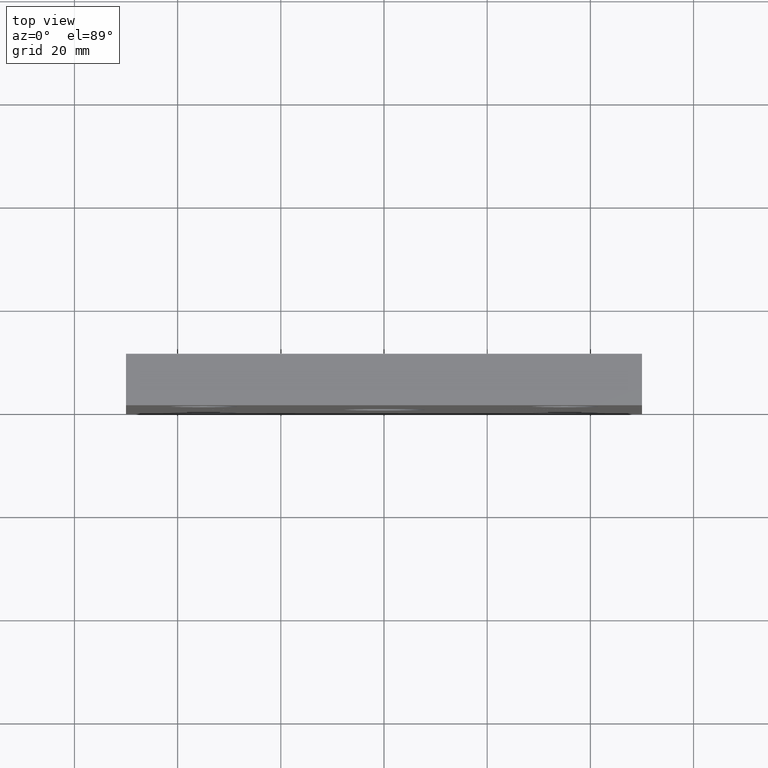
[diagram: clean part render]
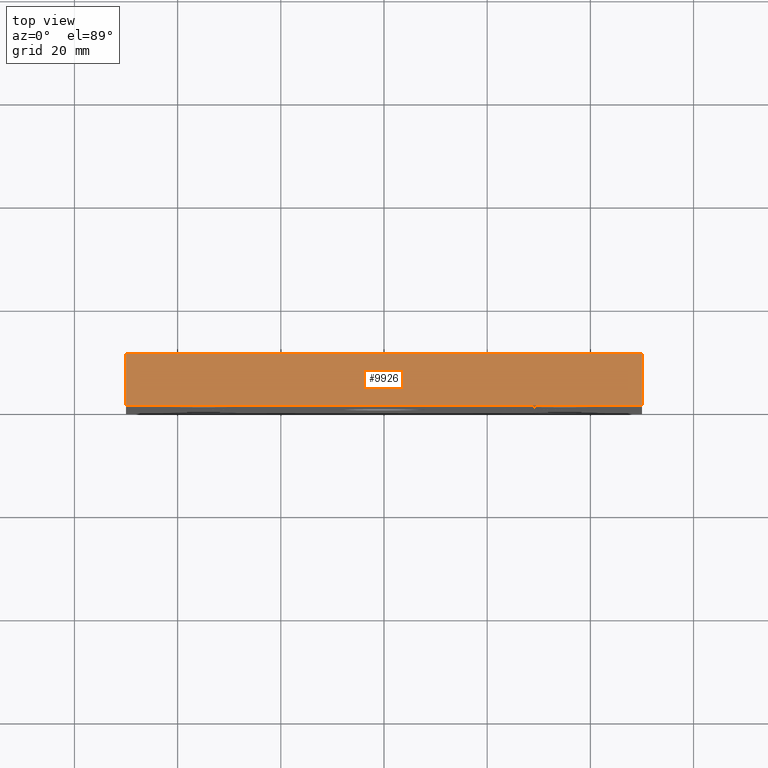
[diagram: same view with one face highlighted and labeled with its STEP entity id]
A machine part, top view. The second image highlights one B-rep face of the part: STEP entity #9926.
In plain terms, the highlighted planar face has unit normal (0, 0, -1).
Its self-contained STEP definition (entity closure, byte-faithful):
#145 = VERTEX_POINT ( 'NONE', #10033 ) ;
#1329 = EDGE_CURVE ( 'NONE', #13005, #4646, #11729, .T. ) ;
#1457 = CARTESIAN_POINT ( 'NONE',  ( -49.99999999999999289, 10.00000000000000000, 49.99999999999999289 ) ) ;
#1801 = CARTESIAN_POINT ( 'NONE',  ( -49.99999999999999289, 10.00000000000000000, 49.99999999999999289 ) ) ;
#1971 = AXIS2_PLACEMENT_3D ( 'NONE', #1457, #3553, #6878 ) ;
#3426 = VECTOR ( 'NONE', #13999, 1000.000000000000000 ) ;
#3553 = DIRECTION ( 'NONE',  ( 0.000000000000000000, 0.000000000000000000, -1.000000000000000000 ) ) ;
#4012 = EDGE_CURVE ( 'NONE', #12168, #13005, #9835, .T. ) ;
#4247 = ORIENTED_EDGE ( 'NONE', *, *, #11372, .T. ) ;
#4311 = DIRECTION ( 'NONE',  ( -0.000000000000000000, -1.000000000000000000, -0.000000000000000000 ) ) ;
#4615 = EDGE_CURVE ( 'NONE', #12168, #145, #6811, .T. ) ;
#4646 = VERTEX_POINT ( 'NONE', #11408 ) ;
#4960 = ORIENTED_EDGE ( 'NONE', *, *, #4615, .T. ) ;
#6811 = LINE ( 'NONE', #1801, #7309 ) ;
#6878 = DIRECTION ( 'NONE',  ( -1.000000000000000000, 0.000000000000000000, -0.000000000000000000 ) ) ;
#7138 = CARTESIAN_POINT ( 'NONE',  ( 50.00000000000000000, 10.00000000000000000, 49.99999999999999289 ) ) ;
#7309 = VECTOR ( 'NONE', #4311, 1000.000000000000000 ) ;
#7739 = ORIENTED_EDGE ( 'NONE', *, *, #4012, .F. ) ;
#7981 = DIRECTION ( 'NONE',  ( 1.000000000000000000, 0.000000000000000000, 0.000000000000000000 ) ) ;
#8184 = LINE ( 'NONE', #9118, #12888 ) ;
#8223 = ORIENTED_EDGE ( 'NONE', *, *, #1329, .F. ) ;
#9118 = CARTESIAN_POINT ( 'NONE',  ( -49.99999999999999289, 0.000000000000000000, 49.99999999999999289 ) ) ;
#9835 = LINE ( 'NONE', #12902, #3426 ) ;
#9926 = ADVANCED_FACE ( 'NONE', ( #13615 ), #10015, .F. ) ;
#10015 = PLANE ( 'NONE',  #1971 ) ;
#10033 = CARTESIAN_POINT ( 'NONE',  ( -49.99999999999999289, 0.000000000000000000, 49.99999999999999289 ) ) ;
#10207 = VECTOR ( 'NONE', #12550, 1000.000000000000000 ) ;
#11372 = EDGE_CURVE ( 'NONE', #145, #4646, #8184, .T. ) ;
#11408 = CARTESIAN_POINT ( 'NONE',  ( 50.00000000000000000, 0.000000000000000000, 49.99999999999999289 ) ) ;
#11729 = LINE ( 'NONE', #7138, #10207 ) ;
#11852 = CARTESIAN_POINT ( 'NONE',  ( 50.00000000000000000, 10.00000000000000000, 49.99999999999999289 ) ) ;
#12168 = VERTEX_POINT ( 'NONE', #13555 ) ;
#12550 = DIRECTION ( 'NONE',  ( -0.000000000000000000, -1.000000000000000000, -0.000000000000000000 ) ) ;
#12888 = VECTOR ( 'NONE', #7981, 1000.000000000000000 ) ;
#12902 = CARTESIAN_POINT ( 'NONE',  ( -49.99999999999999289, 10.00000000000000000, 49.99999999999999289 ) ) ;
#13005 = VERTEX_POINT ( 'NONE', #11852 ) ;
#13555 = CARTESIAN_POINT ( 'NONE',  ( -49.99999999999999289, 10.00000000000000000, 49.99999999999999289 ) ) ;
#13608 = EDGE_LOOP ( 'NONE', ( #4247, #8223, #7739, #4960 ) ) ;
#13615 = FACE_OUTER_BOUND ( 'NONE', #13608, .T. ) ;
#13999 = DIRECTION ( 'NONE',  ( 1.000000000000000000, 0.000000000000000000, 0.000000000000000000 ) ) ;